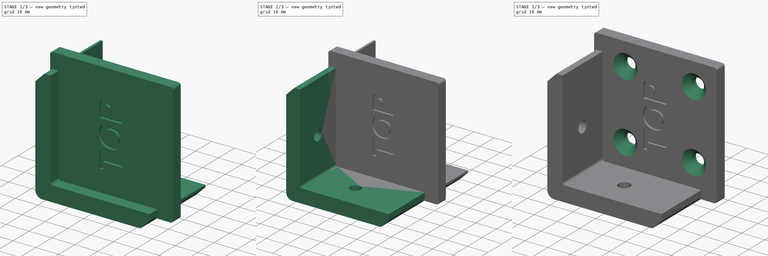
[diagram: build sequence overview — one tinted view per stage of 3, left to right]
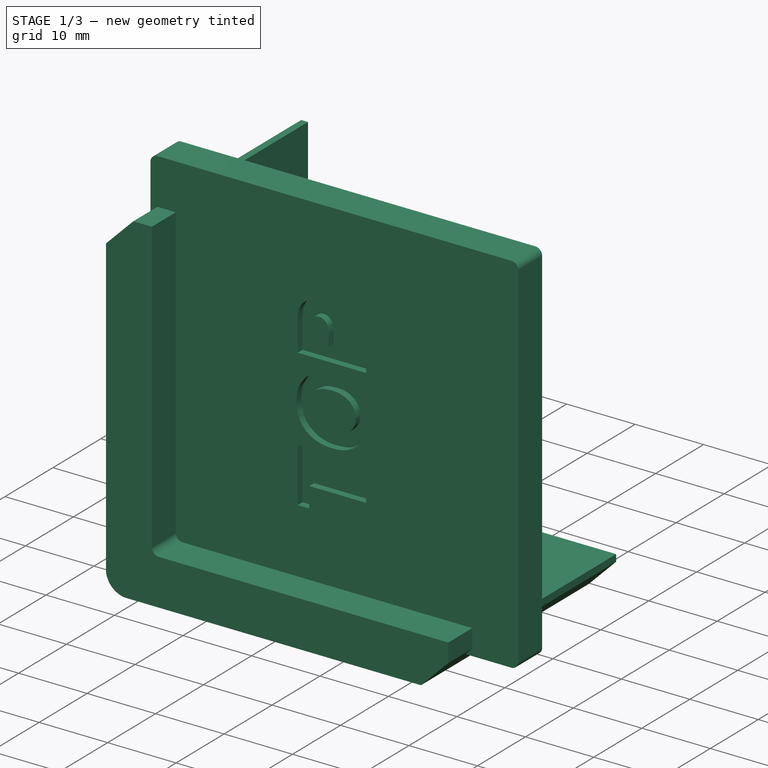
[diagram: stage 1 of 3 — iso view after this stage's code; geometry added in this stage tinted green]
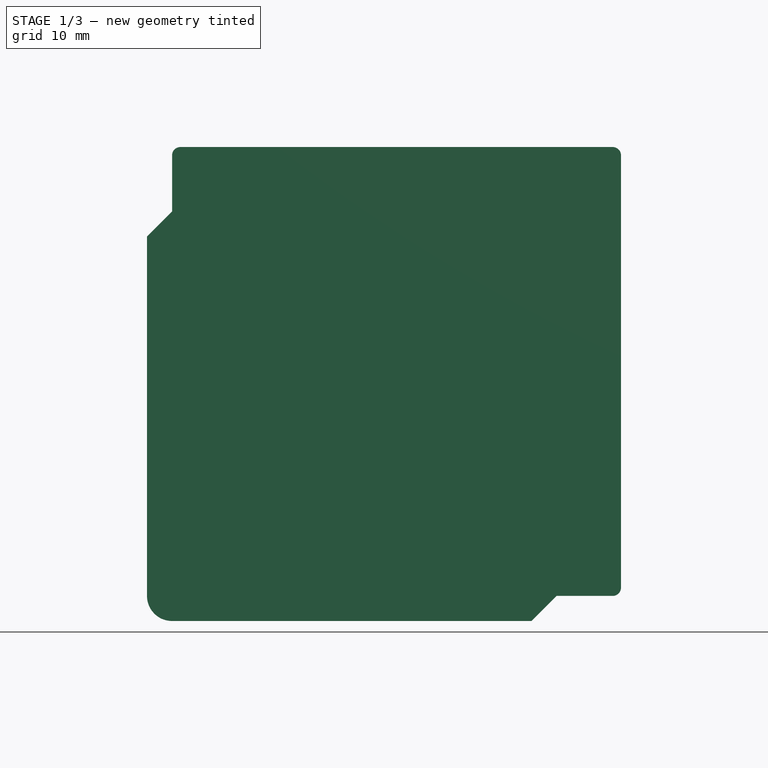
[diagram: stage 1 of 3 — front view after this stage's code; geometry added in this stage tinted green]
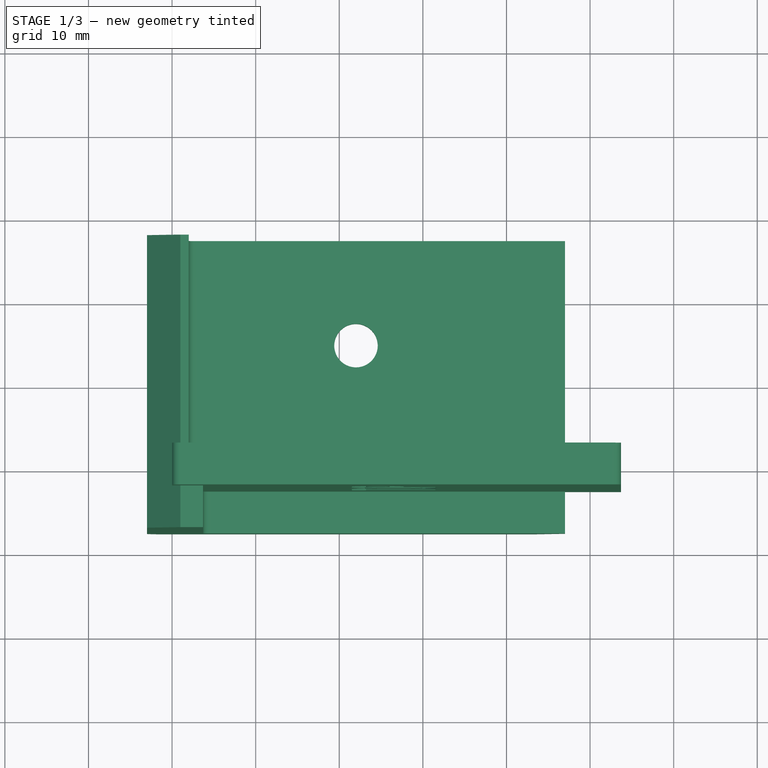
[diagram: stage 1 of 3 — top view after this stage's code; geometry added in this stage tinted green]
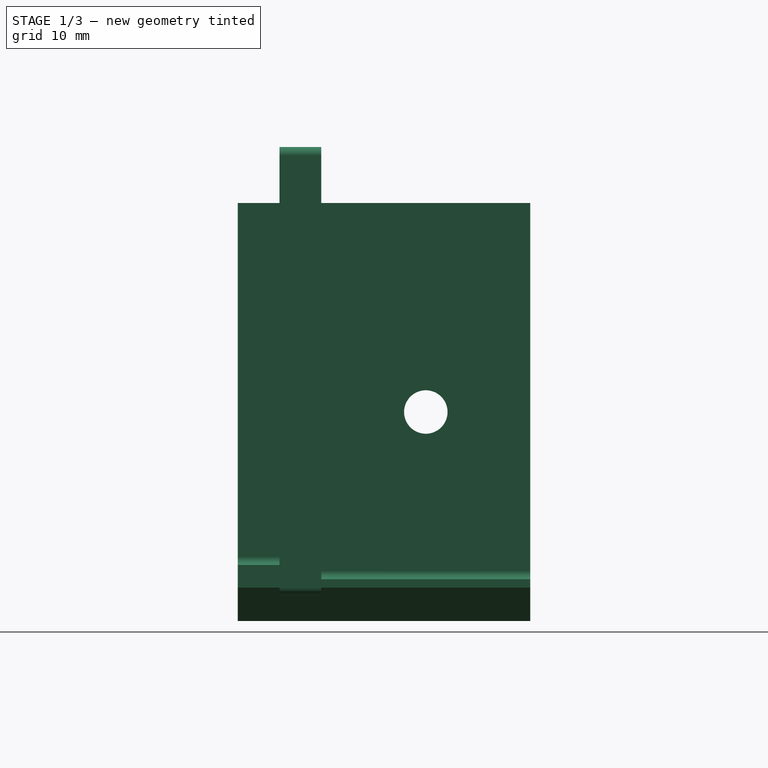
[diagram: stage 1 of 3 — right view after this stage's code; geometry added in this stage tinted green]
FCSTD DOCUMENT  (FreeCAD 0.20RUnknown)
Label: IkeaLackConnector
License: All rights reserved
LicenseURL: http://en.wikipedia.org/wiki/All_rights_reserved
objects: Sketcher::SketchObject×6, PartDesign::Pocket×4, PartDesign::FeatureBase×2, PartDesign::Body×2, Part::Feature×1, PartDesign::Hole×1
note: 21 computed .brp shape members not serialized (recipe doc carries the construction recipe); baked Part::Feature solids carry a one-line shape summary decoded from their .brp

FEATURE [PartDesign::Body] Body
  BaseFeature = -> Solid
  Group = -> [BaseFeature,Sketch,Pocket,Sketch001,Sketch002,Hole]
  Origin = -> Origin
  Tip = -> Hole
FEATURE [PartDesign::FeatureBase] BaseFeature001
  BaseFeature = -> Solid
FEATURE [Sketcher::SketchObject] Sketch003
  FullyConstrained = false
  MapMode = 5
  Placement = pos=(0,-27.5,0) rot=(1,0,0;1.5708rad)
  Support = -> [BaseFeature001]
  sketch-geometry (4):
    g0: LineSegment StartX=-16.0856 StartY=67.6717 StartZ=0 EndX=73.7517 EndY=67.6717 EndZ=0
    g1: LineSegment StartX=73.7517 StartY=67.6717 StartZ=0 EndX=73.7517 EndY=-14.8815 EndZ=0
    g2: LineSegment StartX=73.7517 StartY=-14.8815 StartZ=0 EndX=-16.0856 EndY=-14.8815 EndZ=0
    g3: LineSegment StartX=-16.0856 StartY=-14.8815 StartZ=0 EndX=-16.0856 EndY=67.6717 EndZ=0
  constraints (8):
    c: Coincident(g0,g1)
    c: Coincident(g1,g2)
    c: Coincident(g2,g3)
    c: Coincident(g3,g0)
    c: Horizontal(g0)
    c: Horizontal(g2)
    c: Vertical(g1)
    c: Vertical(g3)
FEATURE [PartDesign::Pocket] Pocket001
  BaseFeature = -> BaseFeature001
  Direction = (0,1,-2e-16)
  Length = 20
  Length2 = 5
  Profile = -> Sketch003
  ReferenceAxis = -> Sketch003 [N_Axis]
  Type = 0
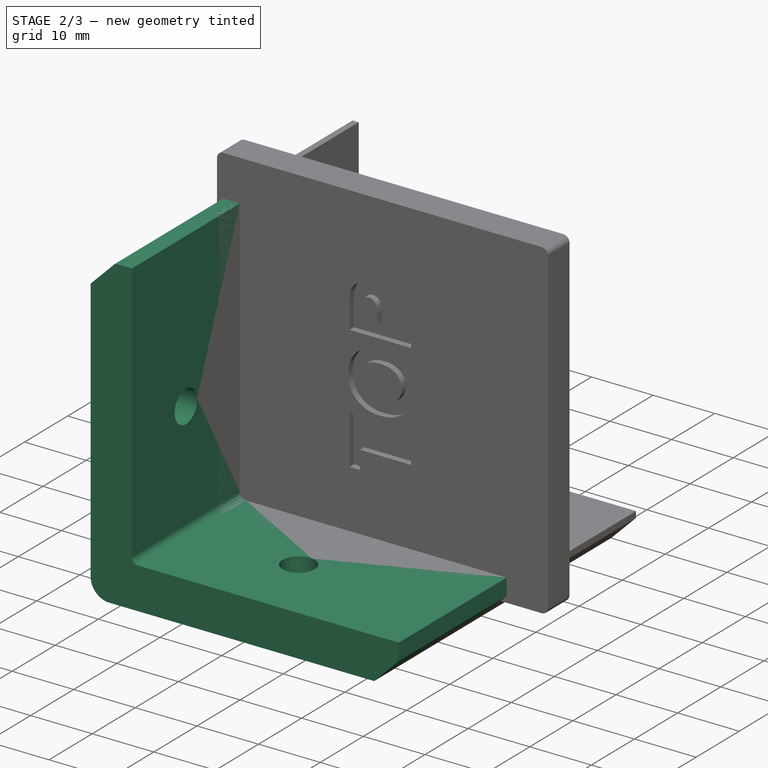
[diagram: stage 2 of 3 — iso view after this stage's code; geometry added in this stage tinted green]
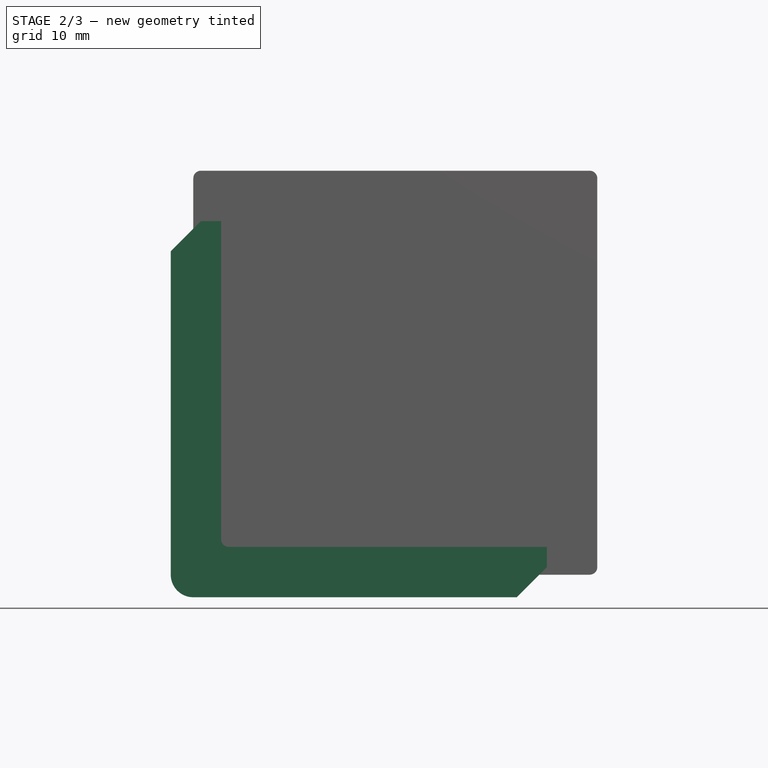
[diagram: stage 2 of 3 — front view after this stage's code; geometry added in this stage tinted green]
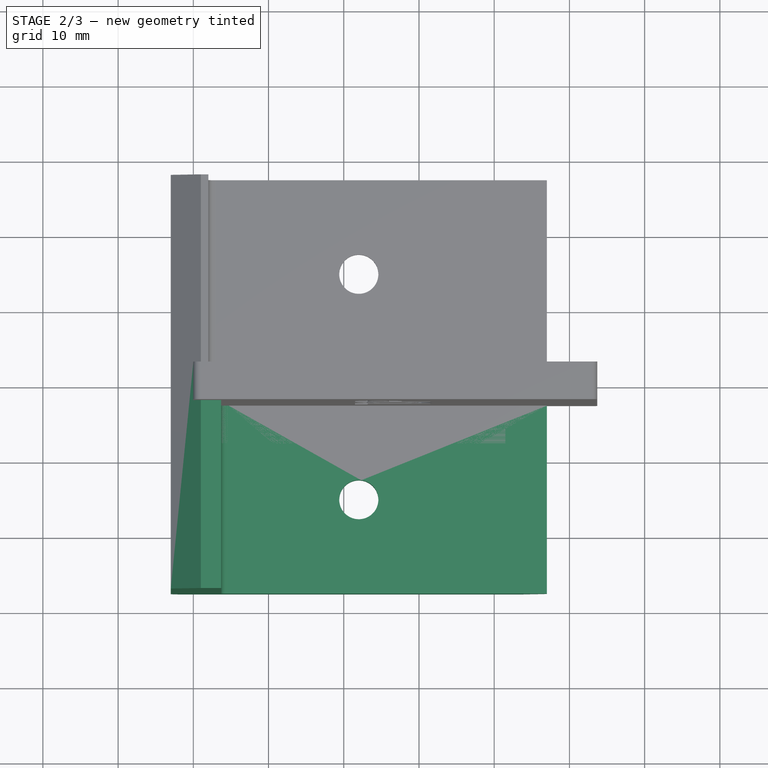
[diagram: stage 2 of 3 — top view after this stage's code; geometry added in this stage tinted green]
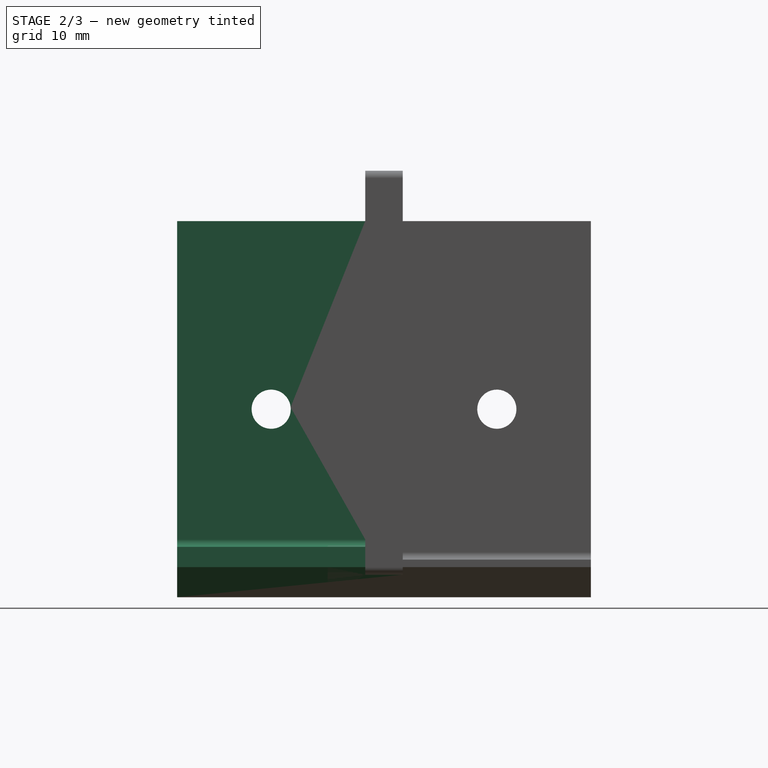
[diagram: stage 2 of 3 — right view after this stage's code; geometry added in this stage tinted green]
FEATURE [Part::Feature] Solid  label="IKEA_Lack_Table_Connectors v1"
  shape: bbox 56.7 x 55 x 56.7 mm, 86 faces (baked)
FEATURE [PartDesign::FeatureBase] BaseFeature
  BaseFeature = -> Solid
FEATURE [Sketcher::SketchObject] Sketch004
  FullyConstrained = false
  MapMode = 5
  Placement = pos=(0,27.5,0) rot=(0,0.707107,0.707107;3.14159rad)
  Support = -> [Pocket001]
  sketch-geometry (4):
    g0: LineSegment StartX=-64.209 StartY=66.9699 StartZ=0 EndX=23.8073 EndY=66.9699 EndZ=0
    g1: LineSegment StartX=23.8073 StartY=66.9699 StartZ=0 EndX=23.8073 EndY=-20.4394 EndZ=0
    g2: LineSegment StartX=23.8073 StartY=-20.4394 StartZ=0 EndX=-64.209 EndY=-20.4394 EndZ=0
    g3: LineSegment StartX=-64.209 StartY=-20.4394 StartZ=0 EndX=-64.209 EndY=66.9699 EndZ=0
  constraints (8):
    c: Coincident(g0,g1)
    c: Coincident(g1,g2)
    c: Coincident(g2,g3)
    c: Coincident(g3,g0)
    c: Horizontal(g0)
    c: Horizontal(g2)
    c: Vertical(g1)
    c: Vertical(g3)
FEATURE [PartDesign::Pocket] Pocket002
  BaseFeature = -> Pocket001
  Direction = (0,-1,2e-16)
  Length = 20
  Length2 = 5
  Profile = -> Sketch004
  ReferenceAxis = -> Sketch004 [N_Axis]
  Type = 0
FEATURE [Sketcher::SketchObject] Sketch005
  ExternalGeometry = -> [Pocket002]
  FullyConstrained = false
  MapMode = 5
  Placement = pos=(0,2.5,0) rot=(0,0.707107,0.707107;3.14159rad)
  Support = -> [Pocket002]
  sketch-geometry (15):
    g0: LineSegment StartX=-63.1415 StartY=62.55 StartZ=0 EndX=11.8525 EndY=62.55 EndZ=0
    g1: LineSegment StartX=11.8525 StartY=62.55 StartZ=0 EndX=11.8525 EndY=34.1475 EndZ=0
    g2: LineSegment StartX=11.8525 StartY=34.1475 StartZ=0 EndX=3 EndY=43 EndZ=0
    g3: LineSegment StartX=3 StartY=43 StartZ=0 EndX=-0.999999 EndY=47 EndZ=0
    g4: LineSegment StartX=-0.999999 StartY=47 StartZ=0 EndX=-2 EndY=47 EndZ=0
    g5: LineSegment StartX=-2 StartY=47 StartZ=0 EndX=-2 EndY=3 EndZ=0
    g6: LineSegment StartX=-3 StartY=2 StartZ=0 EndX=-47 EndY=2 EndZ=0
    g7: LineSegment StartX=-47 StartY=2 StartZ=0 EndX=-47 EndY=0.999999 EndZ=0
    g8: LineSegment StartX=-47 StartY=0.999999 StartZ=0 EndX=-43 EndY=-3 EndZ=0
    g9: LineSegment StartX=-43 StartY=-3 StartZ=0 EndX=-36.918 EndY=-9.08198 EndZ=0
    g10: LineSegment StartX=-36.918 StartY=-9.08198 StartZ=0 EndX=-63.1415 EndY=-9.08198 EndZ=0
    g11: LineSegment StartX=-63.1415 StartY=-9.08198 StartZ=0 EndX=-63.1415 EndY=62.55 EndZ=0
    g12: LineSegment StartX=-3 StartY=2 StartZ=0 EndX=-3 EndY=3 EndZ=0
    g13: LineSegment StartX=-3 StartY=3 StartZ=0 EndX=-2 EndY=3 EndZ=0
    g14: ArcOfCircle CenterX=-3 CenterY=3 CenterZ=0 NormalX=0 NormalY=0 NormalZ=1 AngleXU=0 Radius=1 StartAngle=4.71239 EndAngle=6.28319
  constraints (33):
    c: Horizontal(g0)
    c: Coincident(g0,g1)
    c: Vertical(g1)
    c: Coincident(g1,g2)
    c: Coincident(g2,g-4)
    c: Coincident(g2,g3)
    c: Coincident(g3,g-4)
    c: Coincident(g3,g4)
    c: Coincident(g4,g-3)
    c: Coincident(g4,g5)
    c: Coincident(g5,g-3)
    c: Coincident(g6,g-5)
    c: Coincident(g6,g7)
    c: Coincident(g7,g-6)
    c: Coincident(g7,g8)
    c: Coincident(g8,g-6)
    c: Coincident(g8,g9)
    c: Coincident(g9,g10)
    c: Horizontal(g10)
    c: Coincident(g10,g11)
    c: Coincident(g11,g0)
    c: Vertical(g11)
    c: Parallel(g3,g2)
    c: Parallel(g9,g8)
    c: Coincident(g6,g12)
    c: Vertical(g12)
    c: Coincident(g12,g13)
    c: Coincident(g13,g5)
    c: Horizontal(g13)
    c: Coincident(g14,g12)
    c: Coincident(g14,g6)
    c: Coincident(g14,g5)
    c: Horizontal(g6)
FEATURE [PartDesign::Pocket] Pocket003
  BaseFeature = -> Pocket002
  Direction = (0,-1,2e-16)
  Length = 5
  Length2 = 5
  Profile = -> Sketch005
  ReferenceAxis = -> Sketch005 [N_Axis]
  Type = 0
FEATURE [PartDesign::Body] Body001  label="Guide"
  BaseFeature = -> Solid
  Group = -> [BaseFeature001,Sketch003,Pocket001,Sketch004,Pocket002,Sketch005,Pocket003]
  Origin = -> Origin001
  Tip = -> Pocket003
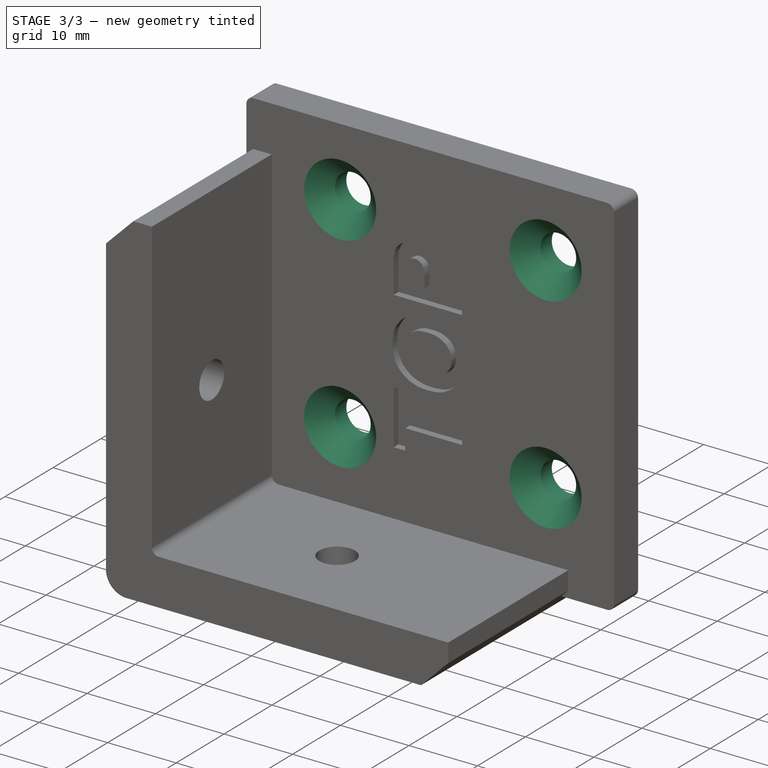
[diagram: stage 3 of 3 — iso view after this stage's code; geometry added in this stage tinted green]
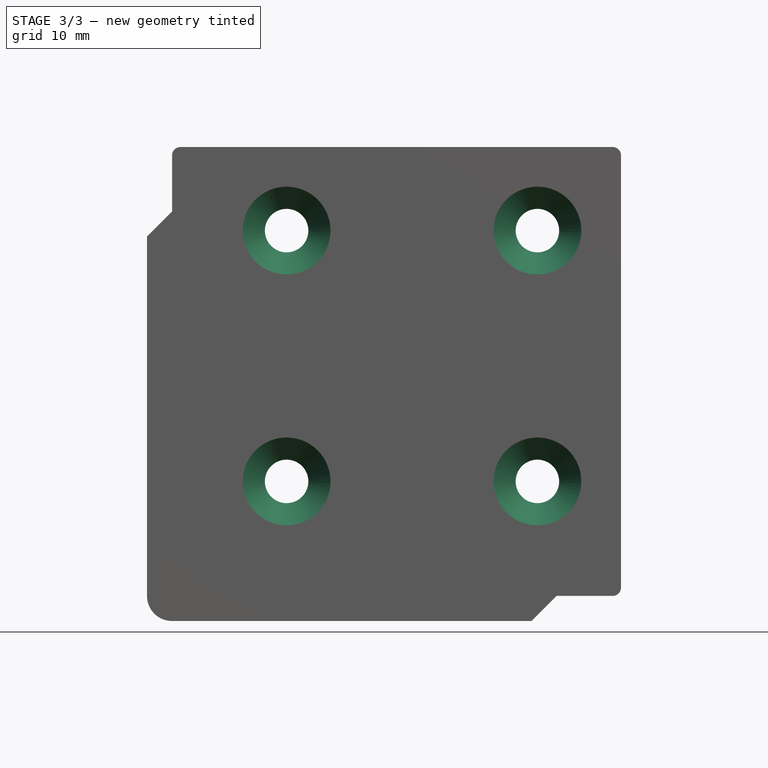
[diagram: stage 3 of 3 — front view after this stage's code; geometry added in this stage tinted green]
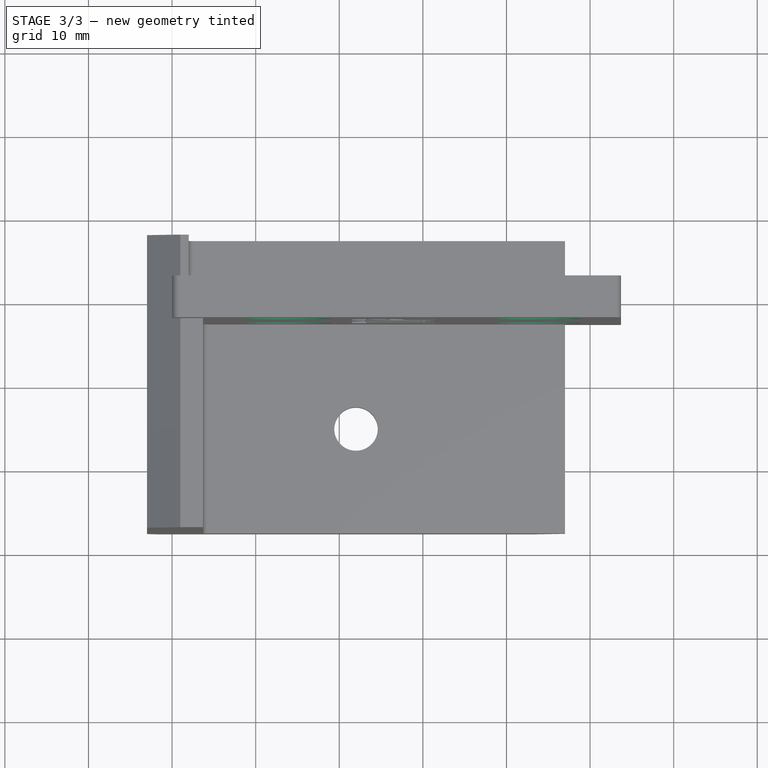
[diagram: stage 3 of 3 — top view after this stage's code; geometry added in this stage tinted green]
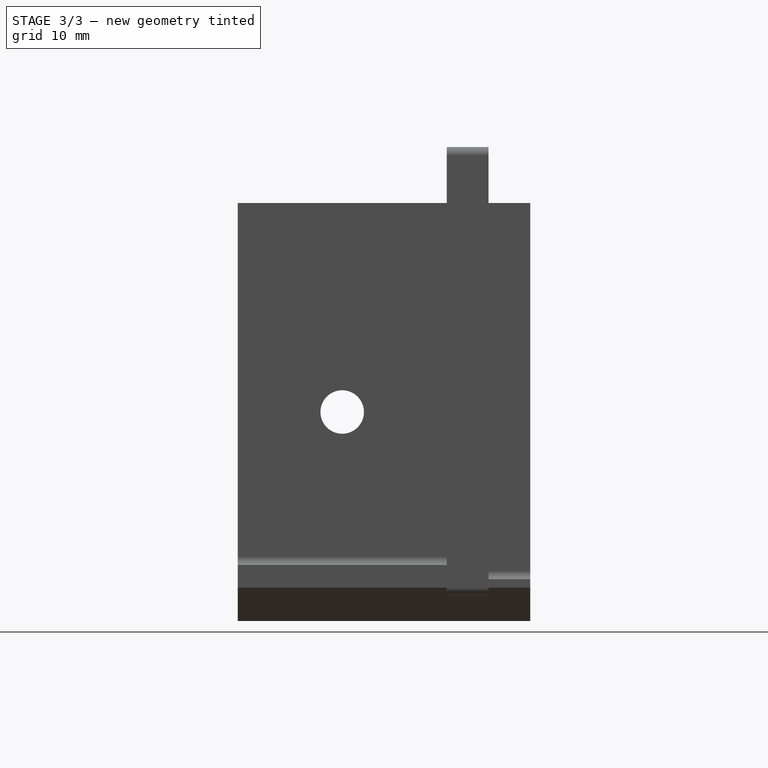
[diagram: stage 3 of 3 — right view after this stage's code; geometry added in this stage tinted green]
FEATURE [Sketcher::SketchObject] Sketch
  ExternalGeometry = -> [BaseFeature]
  FullyConstrained = true
  MapMode = 5
  Placement = pos=(0,2.5,0) rot=(0,0.707107,0.707107;3.14159rad)
  Support = -> [BaseFeature]
  sketch-geometry (4):
    g0: LineSegment StartX=-63.7 StartY=63.7 StartZ=0 EndX=10 EndY=63.7 EndZ=0
    g1: LineSegment StartX=10 StartY=63.7 StartZ=0 EndX=10 EndY=-10 EndZ=0
    g2: LineSegment StartX=10 StartY=-10 StartZ=0 EndX=-63.7 EndY=-10 EndZ=0
    g3: LineSegment StartX=-63.7 StartY=-10 StartZ=0 EndX=-63.7 EndY=63.7 EndZ=0
  constraints (12):
    c: Coincident(g0,g1)
    c: Coincident(g1,g2)
    c: Coincident(g2,g3)
    c: Coincident(g3,g0)
    c: Horizontal(g0)
    c: Horizontal(g2)
    c: Vertical(g1)
    c: Vertical(g3)
    c: DistanceY(g2,g-6) = 10
    c: DistanceX(g2,g-4) = 10
    c: DistanceY(g-3,g0) = 10
    c: DistanceX(g-5,g0) = 10
FEATURE [PartDesign::Pocket] Pocket  label="RemoveBottomPocket"
  BaseFeature = -> BaseFeature
  Direction = (0,-1,2e-16)
  Length = 5
  Length2 = 5
  Profile = -> Sketch
  ReferenceAxis = -> Sketch [N_Axis]
  Reversed = true
  Type = 1
FEATURE [Sketcher::SketchObject] Sketch001  label="HoleMeassureSketch"
  ExternalGeometry = -> [Pocket]
  FullyConstrained = true
  MapMode = 5
  Placement = pos=(0,0,-3) rot=(1,0,0;3.14159rad)
  Support = -> [Pocket]
  constraints (2):
    c: Diameter(g-4) = 5.2  'hole'
    c: Diameter(g-3) = 10.5  'sink'
FEATURE [Sketcher::SketchObject] Sketch002
  ExternalGeometry = -> [Pocket]
  FullyConstrained = true
  MapMode = 5
  Placement = pos=(0,-2.5,0) rot=(1,0,0;1.5708rad)
  Support = -> [Pocket]
  sketch-geometry (14):
    g0: LineSegment StartX=3.7 StartY=53.7 StartZ=0 EndX=53.7 EndY=53.7 EndZ=0
    g1: LineSegment StartX=53.7 StartY=53.7 StartZ=0 EndX=53.7 EndY=3.7 EndZ=0
    g2: LineSegment StartX=53.7 StartY=3.7 StartZ=0 EndX=3.7 EndY=3.7 EndZ=0
    g3: LineSegment StartX=3.7 StartY=3.7 StartZ=0 EndX=3.7 EndY=53.7 EndZ=0
    g4: LineSegment StartX=53.7 StartY=53.7 StartZ=0 EndX=3.7 EndY=3.7 EndZ=0
    g5: LineSegment StartX=3.7 StartY=53.7 StartZ=0 EndX=53.7 EndY=3.7 EndZ=0
    g6: Circle CenterX=43.7 CenterY=13.7 CenterZ=0 NormalX=0 NormalY=0 NormalZ=1 AngleXU=0 Radius=2.5
    g7: Circle CenterX=13.7 CenterY=13.7 CenterZ=0 NormalX=0 NormalY=0 NormalZ=1 AngleXU=0 Radius=2.5
    g8: Circle CenterX=13.7 CenterY=43.7 CenterZ=0 NormalX=0 NormalY=0 NormalZ=1 AngleXU=0 Radius=2.5
    g9: Circle CenterX=43.7 CenterY=43.7 CenterZ=0 NormalX=0 NormalY=0 NormalZ=1 AngleXU=0 Radius=2.5
    g10: LineSegment StartX=13.7 StartY=43.7 StartZ=0 EndX=43.7 EndY=43.7 EndZ=0
    g11: LineSegment StartX=43.7 StartY=43.7 StartZ=0 EndX=43.7 EndY=13.7 EndZ=0
    g12: LineSegment StartX=43.7 StartY=13.7 StartZ=0 EndX=13.7 EndY=13.7 EndZ=0
    g13: LineSegment StartX=13.7 StartY=13.7 StartZ=0 EndX=13.7 EndY=43.7 EndZ=0
  constraints (36):
    c: Coincident(g0,g1)
    c: Coincident(g1,g2)
    c: Coincident(g2,g3)
    c: Coincident(g3,g0)
    c: Horizontal(g0)
    c: Horizontal(g2)
    c: Vertical(g1)
    c: Vertical(g3)
    c: DistanceY(g-4,g1) = 0
    c: DistanceX(g-3,g0) = 0
    c: PointOnObject(g-5,g1)
    c: PointOnObject(g-6,g0)
    c: Coincident(g4,g0)
    c: Coincident(g4,g2)
    c: Coincident(g5,g0)
    c: Coincident(g5,g1)
    c: PointOnObject(g6,g5)
    c: Diameter(g6) = 5
    c: PointOnObject(g7,g4)
    c: PointOnObject(g8,g5)
    c: PointOnObject(g9,g4)
    c: Equal(g6,g9)
    c: Equal(g6,g8)
    c: Equal(g6,g7)
    c: Coincident(g10,g8)
    c: Coincident(g10,g9)
    c: Horizontal(g10)
    c: Coincident(g10,g11)
    c: Coincident(g11,g6)
    c: Coincident(g11,g12)
    c: Coincident(g12,g7)
    c: Coincident(g12,g13)
    c: Coincident(g13,g10)
    c: Vertical(g11)
    c: Vertical(g13)
    c: DistanceY(g9,g-6) = 10
FEATURE [PartDesign::Hole] Hole
  BaseFeature = -> Pocket
  CustomThreadClearance = 0
  Depth = 25
  DepthType = 0
  Diameter = 5.2
  DrillForDepth = false
  DrillPoint = 1
  DrillPointAngle = 118
  HoleCutCountersinkAngle = 90
  HoleCutCustomValues = false
  HoleCutDepth = 4.68
  HoleCutDiameter = 10.5
  HoleCutType = 2
  ModelThread = false
  Profile = -> Sketch002
  Tapered = false
  TaperedAngle = 90
  ThreadClass = 0
  ThreadDepth = 25
  ThreadDepthType = 0
  ThreadDirection = 0
  ThreadFit = 2
  ThreadSize = 0
  ThreadType = 0
  Threaded = false
  UseCustomThreadClearance = false
  expr: Diameter = <<HoleMeassureSketch>>.Constraints.hole
  expr: HoleCutDiameter = <<HoleMeassureSketch>>.Constraints.sink
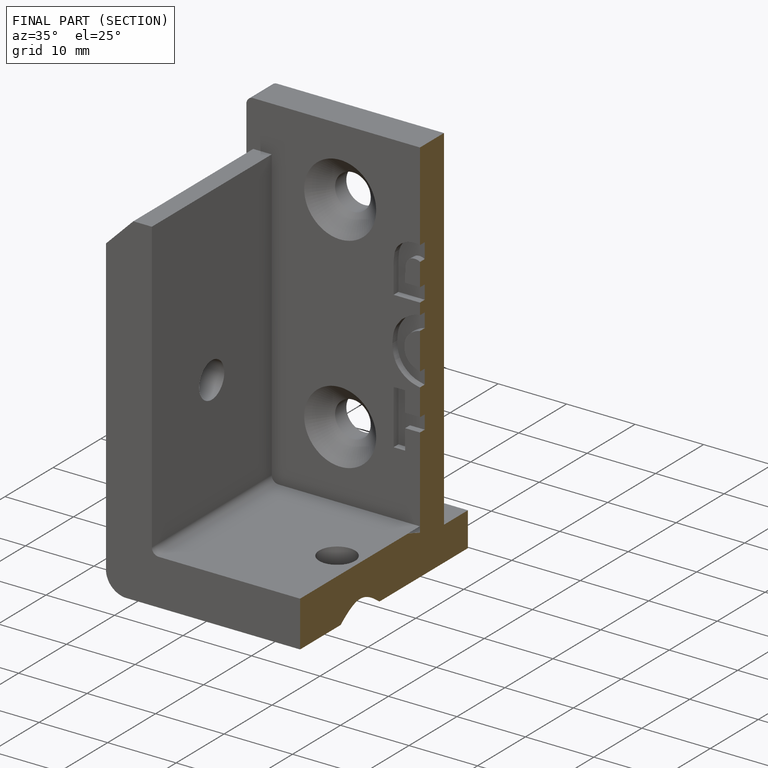
[diagram: finished part — half-section view (interior)]
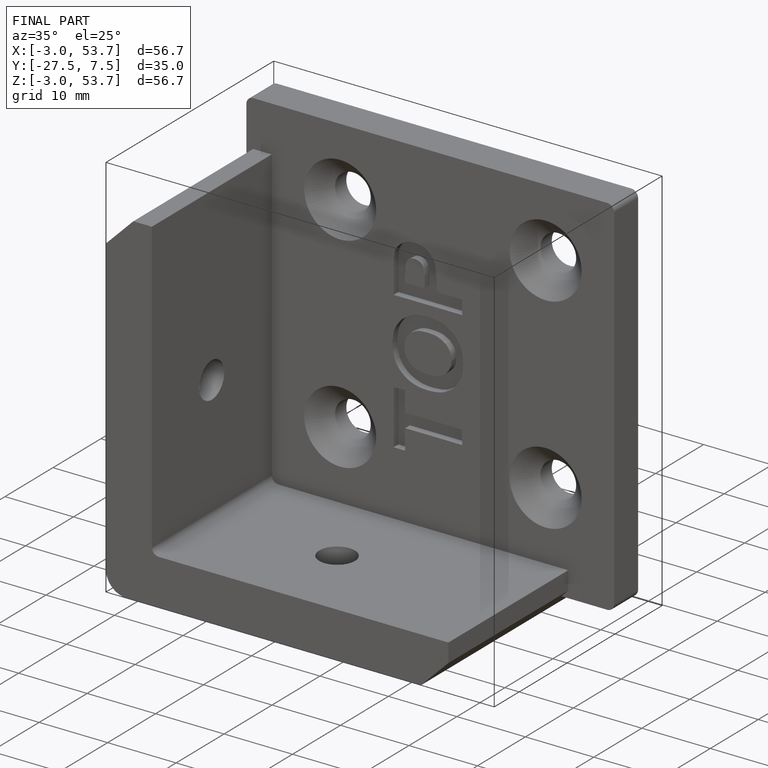
[diagram: finished part — iso view with bounding-box wireframe]
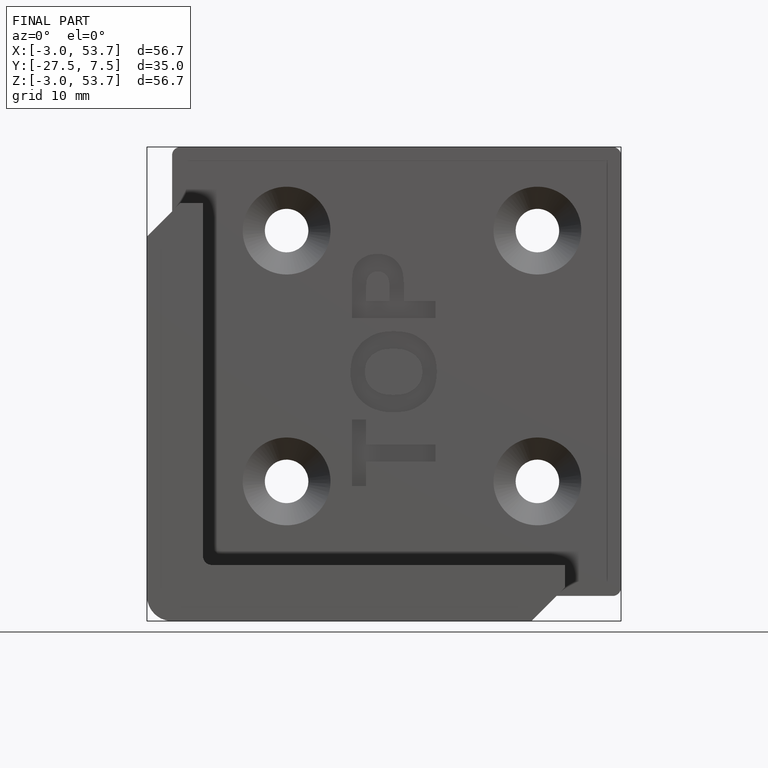
[diagram: finished part — front view with bounding-box wireframe]
